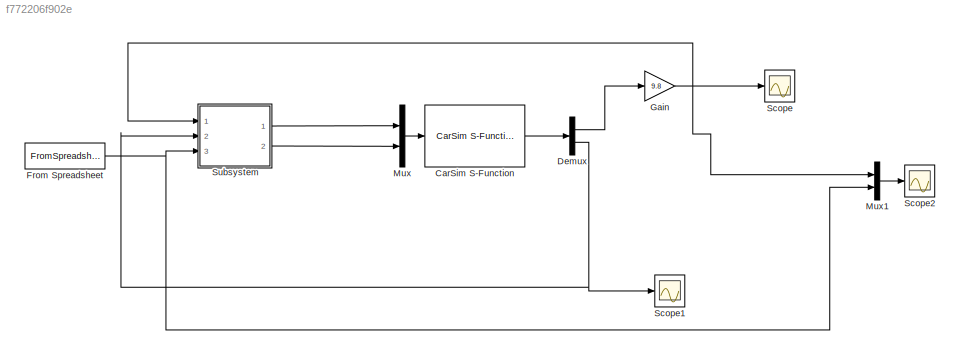
MODEL slx_f772206f902e
KIND model
CONFIG AbsTol = auto
CONFIG EnableMultiTasking = off
CONFIG FixedStep = auto
CONFIG MaxStep = auto
CONFIG MinStep = auto
CONFIG RelTol = 1e-3
CONFIG SampleTimeConstraint = Unconstrained
CONFIG Solver = VariableStepAuto
CONFIG SolverName = VariableStepAuto
CONFIG StartTime = 0.0
CONFIG StopTime = 40
BLOCK [Reference] CarSim S-Function  REF=Solver_SF/CarSim S-Function
  AttributesFormatString = Vehicle Code: %<VehicleCode>
  Ports = [1, 1]
  Priority = 1
  SourceBlock = Solver_SF/CarSim S-Function
  SourceType = Vehicle math model library
BLOCK [Demux] Demux
  DisplayOption = bar
  Outputs = 2
  Ports = [1, 2]
BLOCK [FromSpreadsheet] From Spreadsheet
  FileName = <userpath>\Desktop\毕设\逆动力学模型\test.xlsx
  Ports = [0, 1]
BLOCK [Gain] Gain
  Gain = 9.8
  OutDataTypeStr = Inherit: Inherit via internal rule
  ParamDataTypeStr = Inherit: Inherit via internal rule
  SaturateOnIntegerOverflow = off
BLOCK [Mux] Mux
  DisplayOption = bar
  Inputs = 2
  Ports = [2, 1]
BLOCK [Mux] Mux1
  DisplayOption = bar
  Inputs = 2
  Ports = [2, 1]
BLOCK [Scope] Scope
  NumInputPorts = 1
  Ports = [1]
  ScopeSpecificationString = Simulink.scopes.TimeScopeBlockCfg('CurrentConfiguration', extmgr.ConfigurationSet(extmgr.Configuration('Core','General UI',true),extmgr.Configuration('Core','Source UI',true),extmgr.Configuration('Sources','WiredSimulink',true,'DataLoggingVariableName','ScopeData1'),extmgr.Configuration('Visuals','Time Domain',true,'SerializedDisplays',{struct('MinYLimReal','-4.15184','MaxYLimReal','3.83901','YLab...<+1715ch>
BLOCK [Scope] Scope1
  NumInputPorts = 1
  Ports = [1]
  ScopeSpecificationString = Simulink.scopes.TimeScopeBlockCfg('CurrentConfiguration', extmgr.ConfigurationSet(extmgr.Configuration('Core','General UI',true),extmgr.Configuration('Core','Source UI',true),extmgr.Configuration('Sources','WiredSimulink',true,'DataLoggingVariableName','ScopeData1'),extmgr.Configuration('Visuals','Time Domain',true,'SerializedDisplays',{struct('MinYLimReal','-13.22906','MaxYLimReal','117.99126','Y...<+1702ch>
BLOCK [Scope] Scope2
  NumInputPorts = 1
  Ports = [1]
  ScopeSpecificationString = Simulink.scopes.TimeScopeBlockCfg('CurrentConfiguration', extmgr.ConfigurationSet(extmgr.Configuration('Core','General UI',true),extmgr.Configuration('Core','Source UI',true),extmgr.Configuration('Sources','WiredSimulink',true,'DataLoggingVariableName','ScopeData1'),extmgr.Configuration('Visuals','Time Domain',true,'SerializedDisplays',{struct('MinYLimReal','-4.39233','MaxYLimReal','3.03829','YLab...<+1394ch>
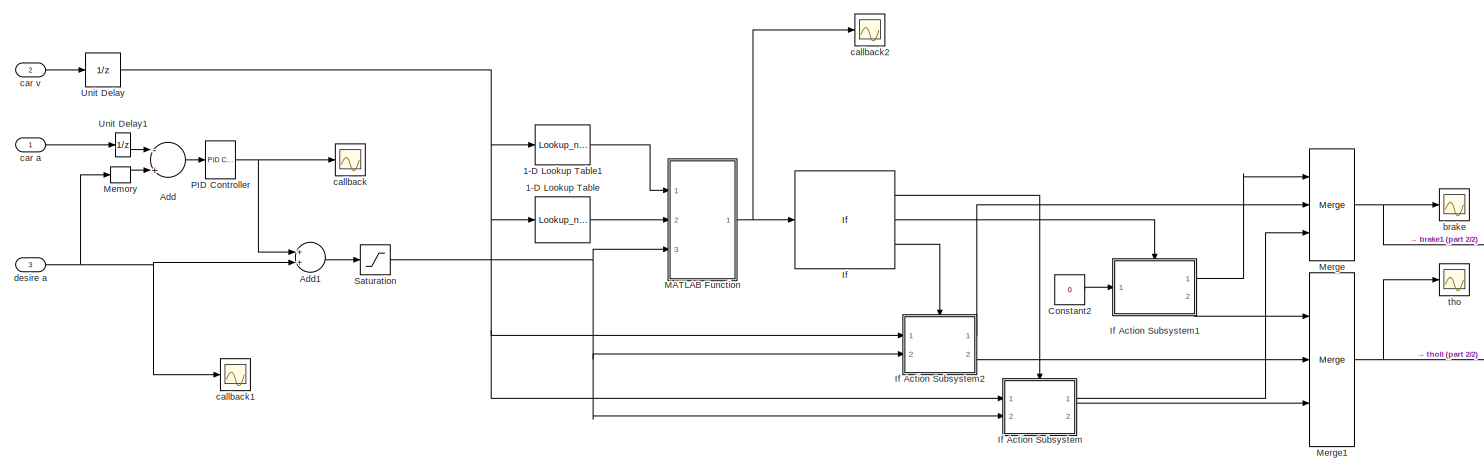
[diagram: Subsystem - part 1/2, most of the canvas]
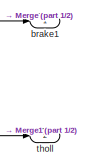
[diagram: Subsystem - part 2/2, middle right region]
BLOCK [SubSystem] Subsystem
  Ports = [3, 2]
  RequestExecContextInheritance = off
  Variant = off
BLOCK [Lookup_n-D] Subsystem/1-D Lookup Table
  BreakpointsForDimension1 = xlsread('tho0brk0','sheet2','A2:A29')
  InternalRulePriority = Speed
  NumberOfTableDimensions = 1
  Ports = [1, 1]
  RndMeth = Simplest
  Table = xlsread('tho0brk0','sheet2','B2:B29')
BLOCK [Lookup_n-D] Subsystem/1-D Lookup Table1
  BreakpointsForDimension1 = xlsread('tho0brk0','sheet3','A2:A29')
  InternalRulePriority = Speed
  NumberOfTableDimensions = 1
  Ports = [1, 1]
  RndMeth = Simplest
  Table = xlsread('tho0brk0','sheet3','B2:B29')
BLOCK [Sum] Subsystem/Add
  InputSameDT = off
  Inputs = -+
  OutDataTypeStr = Inherit: Inherit via internal rule
  Ports = [2, 1]
  SaturateOnIntegerOverflow = off
BLOCK [Sum] Subsystem/Add1
  InputSameDT = off
  OutDataTypeStr = Inherit: Inherit via internal rule
  Ports = [2, 1]
  SaturateOnIntegerOverflow = off
BLOCK [Constant] Subsystem/Constant2
  Value = 0
BLOCK [If] Subsystem/If
  ElseIfExpressions = u1 ==0
  Ports = [1, 3]
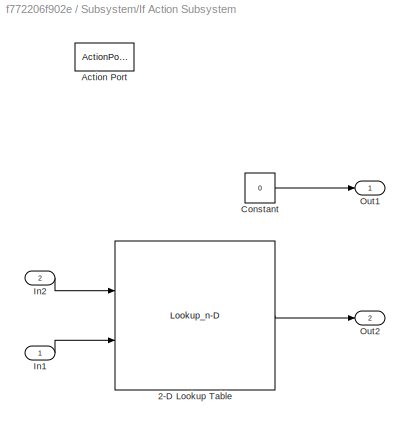
BLOCK [SubSystem] Subsystem/If Action Subsystem
  Ports = [2, 2, 0, 0, 0, 0, 0, 1]
  RequestExecContextInheritance = off
  TreatAsAtomicUnit = on
  Variant = off
BLOCK [Lookup_n-D] Subsystem/If Action Subsystem/2-D Lookup Table
  BreakpointsForDimension1 = xlsread('tho-v-a','sheet4','A3:A34')
  BreakpointsForDimension2 = xlsread('tho-v-a','sheet4','B2:P2')
  InternalRulePriority = Speed
  Ports = [2, 1]
  RndMeth = Simplest
  Table = xlsread('tho-v-a','sheet4','B3:P34')
BLOCK [ActionPort] Subsystem/If Action Subsystem/Action Port
  ActionType = then
BLOCK [Constant] Subsystem/If Action Subsystem/Constant
  Value = 0
BLOCK [Inport] Subsystem/If Action Subsystem/In1
  IconDisplay = Port number
BLOCK [Inport] Subsystem/If Action Subsystem/In2
  IconDisplay = Port number
  Port = 2
BLOCK [Outport] Subsystem/If Action Subsystem/Out1
  IconDisplay = Port number
BLOCK [Outport] Subsystem/If Action Subsystem/Out2
  IconDisplay = Port number
  Port = 2
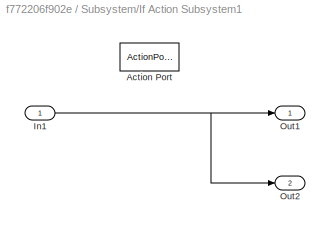
BLOCK [SubSystem] Subsystem/If Action Subsystem1
  Ports = [1, 2, 0, 0, 0, 0, 0, 1]
  RequestExecContextInheritance = off
  TreatAsAtomicUnit = on
  Variant = off
BLOCK [ActionPort] Subsystem/If Action Subsystem1/Action Port
  ActionType = elseif
BLOCK [Inport] Subsystem/If Action Subsystem1/In1
  IconDisplay = Port number
BLOCK [Outport] Subsystem/If Action Subsystem1/Out1
  IconDisplay = Port number
BLOCK [Outport] Subsystem/If Action Subsystem1/Out2
  IconDisplay = Port number
  Port = 2
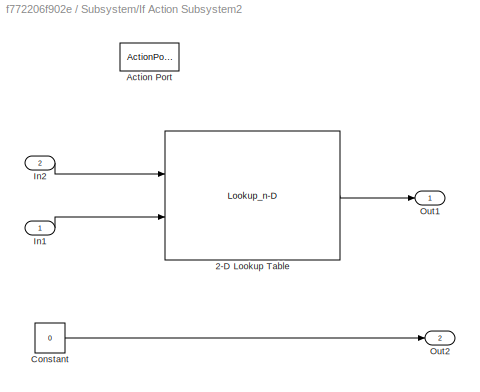
BLOCK [SubSystem] Subsystem/If Action Subsystem2
  Ports = [2, 2, 0, 0, 0, 0, 0, 1]
  RequestExecContextInheritance = off
  TreatAsAtomicUnit = on
  Variant = off
BLOCK [Lookup_n-D] Subsystem/If Action Subsystem2/2-D Lookup Table
  BreakpointsForDimension1 = xlsread('brk-v-a','sheet3','A3:A28')
  BreakpointsForDimension2 = xlsread('brk-v-a','sheet3','B2:P2')
  InternalRulePriority = Speed
  Ports = [2, 1]
  RndMeth = Simplest
  Table = xlsread('brk-v-a','sheet3','B3:P28')
BLOCK [ActionPort] Subsystem/If Action Subsystem2/Action Port
  ActionType = else
BLOCK [Constant] Subsystem/If Action Subsystem2/Constant
  Value = 0
BLOCK [Inport] Subsystem/If Action Subsystem2/In1
  IconDisplay = Port number
BLOCK [Inport] Subsystem/If Action Subsystem2/In2
  IconDisplay = Port number
  Port = 2
BLOCK [Outport] Subsystem/If Action Subsystem2/Out1
  IconDisplay = Port number
BLOCK [Outport] Subsystem/If Action Subsystem2/Out2
  IconDisplay = Port number
  Port = 2
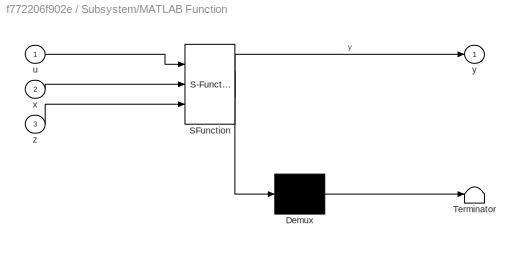
BLOCK [SubSystem] Subsystem/MATLAB Function
  ErrorFcn = Stateflow.Translate.translate
  PermitHierarchicalResolution = ExplicitOnly
  Ports = [3, 1]
  RequestExecContextInheritance = off
  SFBlockType = MATLAB Function
  TreatAsAtomicUnit = on
  Variant = off
BLOCK [Demux] Subsystem/MATLAB Function/ Demux 
  Outputs = 1
  Ports = [1, 1]
BLOCK [S-Function] Subsystem/MATLAB Function/ SFunction 
  EnableBusSupport = on
  FunctionName = sf_sfun
  PortCounts = [3 2]
  Ports = [3, 2]
  SFcnIsStateOwnerBlock = off
  SFunctionDeploymentMode = off
  Tag = Stateflow S-Function NI 2
BLOCK [Terminator] Subsystem/MATLAB Function/ Terminator 
BLOCK [Inport] Subsystem/MATLAB Function/u
  IconDisplay = Port number
BLOCK [Inport] Subsystem/MATLAB Function/x
  IconDisplay = Port number
  Port = 2
BLOCK [Outport] Subsystem/MATLAB Function/y
  IconDisplay = Port number
BLOCK [Inport] Subsystem/MATLAB Function/z
  IconDisplay = Port number
  Port = 3
BLOCK [Memory] Subsystem/Memory
BLOCK [Merge] Subsystem/Merge
  Inputs = 3
  Ports = [3, 1]
BLOCK [Merge] Subsystem/Merge1
  Inputs = 3
  Ports = [3, 1]
BLOCK [Reference] Subsystem/PID Controller  REF=simulink/Continuous/PID Controller
  Ports = [1, 1]
  SourceBlock = simulink/Continuous/PID Controller
  SourceProductBaseCode = SL
  SourceProductName = Simulink
  SourceType = PID 1dof
BLOCK [Saturate] Subsystem/Saturation
  InputPortMap = u0
  LowerLimit = -5
  Ports = [1, 1]
  UpperLimit = 5.4
BLOCK [UnitDelay] Subsystem/Unit Delay
  InputProcessing = Elements as channels (sample based)
  SampleTime = -1
BLOCK [UnitDelay] Subsystem/Unit Delay1
  InputProcessing = Elements as channels (sample based)
  SampleTime = -1
BLOCK [Scope] Subsystem/brake
  NumInputPorts = 1
  Ports = [1]
  ScopeSpecificationString = Simulink.scopes.TimeScopeBlockCfg('CurrentConfiguration', extmgr.ConfigurationSet(extmgr.Configuration('Core','General UI',true),extmgr.Configuration('Core','Source UI',true),extmgr.Configuration('Sources','WiredSimulink',true,'DataLoggingVariableName','ScopeData1'),extmgr.Configuration('Visuals','Time Domain',true,'SerializedDisplays',{struct('MinYLimReal','-0.25','MaxYLimReal','2.25','YLabelReal...<+1346ch>
BLOCK [Outport] Subsystem/brake1
  IconDisplay = Port number
BLOCK [Scope] Subsystem/callback
  NumInputPorts = 1
  Ports = [1]
  ScopeSpecificationString = Simulink.scopes.TimeScopeBlockCfg('CurrentConfiguration', extmgr.ConfigurationSet(extmgr.Configuration('Core','General UI',true),extmgr.Configuration('Core','Source UI',true),extmgr.Configuration('Sources','WiredSimulink',true,'DataLoggingVariableName','ScopeData1'),extmgr.Configuration('Visuals','Time Domain',true,'SerializedDisplays',{struct('MinYLimReal','-8.83295','MaxYLimReal','3.42716','YLab...<+1359ch>
BLOCK [Scope] Subsystem/callback1
  NumInputPorts = 1
  Ports = [1]
  ScopeSpecificationString = Simulink.scopes.TimeScopeBlockCfg('CurrentConfiguration', extmgr.ConfigurationSet(extmgr.Configuration('Core','General UI',true),extmgr.Configuration('Core','Source UI',true),extmgr.Configuration('Sources','WiredSimulink',true,'DataLoggingVariableName','ScopeData1'),extmgr.Configuration('Visuals','Time Domain',true,'SerializedDisplays',{struct('MinYLimReal','-3.625','MaxYLimReal','2.625','YLabelRe...<+1347ch>
BLOCK [Scope] Subsystem/callback2
  NumInputPorts = 1
  Ports = [1]
  ScopeSpecificationString = Simulink.scopes.TimeScopeBlockCfg('CurrentConfiguration', extmgr.ConfigurationSet(extmgr.Configuration('Core','General UI',true),extmgr.Configuration('Core','Source UI',true),extmgr.Configuration('Sources','WiredSimulink',true,'DataLoggingVariableName','ScopeData2'),extmgr.Configuration('Visuals','Time Domain',true,'SerializedDisplays',{struct('MinYLimReal','-1.25','MaxYLimReal','1.25','YLabelReal...<+1376ch>
BLOCK [Inport] Subsystem/car a
  IconDisplay = Port number
BLOCK [Inport] Subsystem/car v
  IconDisplay = Port number
  Port = 2
BLOCK [Inport] Subsystem/desire a
  IconDisplay = Port number
  Port = 3
BLOCK [Scope] Subsystem/tho
  NumInputPorts = 1
  Ports = [1]
  ScopeSpecificationString = Simulink.scopes.TimeScopeBlockCfg('CurrentConfiguration', extmgr.ConfigurationSet(extmgr.Configuration('Core','General UI',true),extmgr.Configuration('Core','Source UI',true),extmgr.Configuration('Sources','WiredSimulink',true),extmgr.Configuration('Visuals','Time Domain',true,'SerializedDisplays',{struct('MinYLimReal','-0.10113','MaxYLimReal','0.91013','YLabelReal','','MinYLimMag','0.00000','MaxY...<+1359ch>
BLOCK [Outport] Subsystem/tholl
  IconDisplay = Port number
  Port = 2
LINE CarSim S-Function:1 -> Demux:1
LINE Demux:1 -> Gain:1
NET Demux:2 -> Scope1:1, Subsystem:2
NET From Spreadsheet:1 -> Mux1:2, Subsystem:3
NET Gain:1 -> Mux1:1, Scope:1, Subsystem:1
LINE Mux1:1 -> Scope2:1
LINE Mux:1 -> CarSim S-Function:1
LINE Subsystem/1-D Lookup Table1:1 -> Subsystem/MATLAB Function:1
LINE Subsystem/1-D Lookup Table:1 -> Subsystem/MATLAB Function:2
LINE Subsystem/Add1:1 -> Subsystem/Saturation:1
LINE Subsystem/Add:1 -> Subsystem/PID Controller:1
LINE Subsystem/Constant2:1 -> Subsystem/If Action Subsystem1:1
LINE Subsystem/If Action Subsystem/2-D Lookup Table:1 -> Subsystem/If Action Subsystem/Out2:1
LINE Subsystem/If Action Subsystem/Constant:1 -> Subsystem/If Action Subsystem/Out1:1
LINE Subsystem/If Action Subsystem/In1:1 -> Subsystem/If Action Subsystem/2-D Lookup Table:2
LINE Subsystem/If Action Subsystem/In2:1 -> Subsystem/If Action Subsystem/2-D Lookup Table:1
NET Subsystem/If Action Subsystem1/In1:1 -> Subsystem/If Action Subsystem1/Out1:1, Subsystem/If Action Subsystem1/Out2:1
LINE Subsystem/If Action Subsystem1:1 -> Subsystem/Merge:1
LINE Subsystem/If Action Subsystem1:2 -> Subsystem/Merge1:1
LINE Subsystem/If Action Subsystem2/2-D Lookup Table:1 -> Subsystem/If Action Subsystem2/Out1:1
LINE Subsystem/If Action Subsystem2/Constant:1 -> Subsystem/If Action Subsystem2/Out2:1
LINE Subsystem/If Action Subsystem2/In1:1 -> Subsystem/If Action Subsystem2/2-D Lookup Table:2
LINE Subsystem/If Action Subsystem2/In2:1 -> Subsystem/If Action Subsystem2/2-D Lookup Table:1
LINE Subsystem/If Action Subsystem2:1 -> Subsystem/Merge:2
LINE Subsystem/If Action Subsystem2:2 -> Subsystem/Merge1:2
LINE Subsystem/If Action Subsystem:1 -> Subsystem/Merge:3
LINE Subsystem/If Action Subsystem:2 -> Subsystem/Merge1:3
LINE Subsystem/If:1 -> Subsystem/If Action Subsystem:ifaction
LINE Subsystem/If:2 -> Subsystem/If Action Subsystem1:ifaction
LINE Subsystem/If:3 -> Subsystem/If Action Subsystem2:ifaction
NET Subsystem/MATLAB Function:1 -> Subsystem/If:1, Subsystem/callback2:1
LINE Subsystem/Memory:1 -> Subsystem/Add:2
NET Subsystem/Merge1:1 -> Subsystem/tho:1, Subsystem/tholl:1
NET Subsystem/Merge:1 -> Subsystem/brake1:1, Subsystem/brake:1
NET Subsystem/PID Controller:1 -> Subsystem/Add1:1, Subsystem/callback:1
NET Subsystem/Saturation:1 -> Subsystem/If Action Subsystem2:2, Subsystem/If Action Subsystem:2, Subsystem/MATLAB Function:3
LINE Subsystem/Unit Delay1:1 -> Subsystem/Add:1
NET Subsystem/Unit Delay:1 -> Subsystem/1-D Lookup Table1:1, Subsystem/1-D Lookup Table:1, Subsystem/If Action Subsystem2:1, Subsystem/If Action Subsystem:1
LINE Subsystem/car a:1 -> Subsystem/Unit Delay1:1
LINE Subsystem/car v:1 -> Subsystem/Unit Delay:1
NET Subsystem/desire a:1 -> Subsystem/Add1:2, Subsystem/Memory:1, Subsystem/callback1:1
LINE Subsystem:1 -> Mux:1
LINE Subsystem:2 -> Mux:2
note: NET lines group one-source signal fan-out (src -> all destinations, sorted); 1:1 wires keep LINE
CHART Subsystem/MATLAB Function states=1 transitions=1
  STATE_LABEL 'eML_blk_kernel()'
  STATE_LABEL 'SCRIPT:\nfunction y = fcn(u, x, z)\nif z>u\n    y=1;\nelseif z<u&&z>x\n    y=0;\nelseif z<x\n    y=-1;\nelse\n    y=5;\nend\n\n    \n    \n\n'
